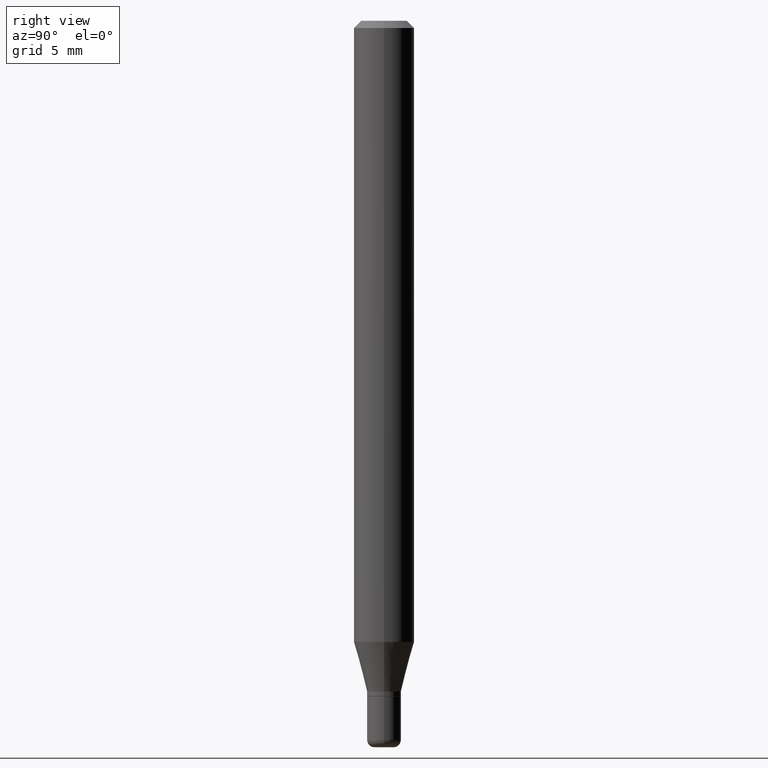
[diagram: clean part render]
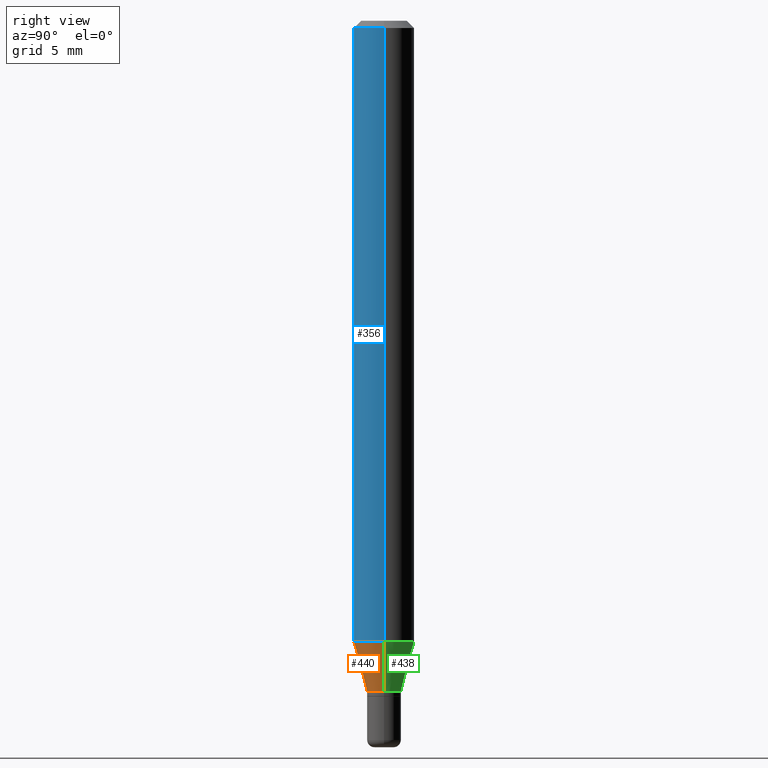
[diagram: same view with three faces highlighted in distinct colors, each labeled with its STEP entity id]
A machine part, right view with three faces highlighted in distinct colors.
Their STEP definitions:

[orange] entity #440 — the highlighted conical surface has half-angle 15 deg.
#15 = EDGE_CURVE ( 'NONE', #511, #121, #208, .T. ) ;
#19 = CARTESIAN_POINT ( 'NONE',  ( 0.06250000000000000000, -4.913801213521515384E-15, -1.282368602791856160 ) ) ;
#29 = CIRCLE ( 'NONE', #385, 0.03500000000000001027 ) ;
#47 = DIRECTION ( 'NONE',  ( 1.000000000000000000, -6.982962677686262766E-15, 0.000000000000000000 ) ) ;
#53 = VERTEX_POINT ( 'NONE', #387 ) ;
#61 = CARTESIAN_POINT ( 'NONE',  ( 3.386974296566414366E-29, -4.835701654297756579E-15, -1.385000000000000009 ) ) ;
#98 = FACE_OUTER_BOUND ( 'NONE', #186, .T. ) ;
#101 = AXIS2_PLACEMENT_3D ( 'NONE', #116, #232, #47 ) ;
#107 = CARTESIAN_POINT ( 'NONE',  ( -0.06250000000000000000, -4.033276836316061099E-15, -1.282368602791856160 ) ) ;
#116 = CARTESIAN_POINT ( 'NONE',  ( 3.135992416158702162E-29, -4.477366046166123715E-15, -1.282368602791856160 ) ) ;
#118 = DIRECTION ( 'NONE',  ( 1.000000000000000000, -6.982962677686275388E-15, 0.000000000000000000 ) ) ;
#121 = VERTEX_POINT ( 'NONE', #107 ) ;
#150 = CARTESIAN_POINT ( 'NONE',  ( 3.386974296566414366E-29, -4.835701654297756579E-15, -1.385000000000000009 ) ) ;
#186 = EDGE_LOOP ( 'NONE', ( #479, #224, #201, #416 ) ) ;
#195 = DIRECTION ( 'NONE',  ( -2.445468806185136597E-29, 3.491481338843145583E-15, 1.000000000000000000 ) ) ;
#198 = EDGE_CURVE ( 'NONE', #53, #352, #407, .T. ) ;
#201 = ORIENTED_EDGE ( 'NONE', *, *, #198, .T. ) ;
#208 = LINE ( 'NONE', #426, #513 ) ;
#224 = ORIENTED_EDGE ( 'NONE', *, *, #308, .T. ) ;
#227 = CARTESIAN_POINT ( 'NONE',  ( 0.03500000000000001027, -5.080105348016776545E-15, -1.385000000000000009 ) ) ;
#232 = DIRECTION ( 'NONE',  ( -2.445468806185136597E-29, 3.491481338843145583E-15, 1.000000000000000000 ) ) ;
#263 = CONICAL_SURFACE ( 'NONE', #452, 0.03500000000000001027, 0.2617993877991498519 ) ;
#288 = DIRECTION ( 'NONE',  ( 1.000000000000000000, -6.982962677686275388E-15, 0.000000000000000000 ) ) ;
#289 = DIRECTION ( 'NONE',  ( -0.2588190451025211281, 5.211531920934547886E-15, 0.9659258262890679791 ) ) ;
#297 = CIRCLE ( 'NONE', #101, 0.06250000000000000000 ) ;
#308 = EDGE_CURVE ( 'NONE', #511, #53, #29, .T. ) ;
#333 = VECTOR ( 'NONE', #463, 39.37007874015748854 ) ;
#352 = VERTEX_POINT ( 'NONE', #19 ) ;
#383 = DIRECTION ( 'NONE',  ( -2.445468806185136597E-29, 3.491481338843145583E-15, 1.000000000000000000 ) ) ;
#385 = AXIS2_PLACEMENT_3D ( 'NONE', #150, #195, #118 ) ;
#387 = CARTESIAN_POINT ( 'NONE',  ( 0.03500000000000001027, -5.080105348016776545E-15, -1.385000000000000009 ) ) ;
#402 = CARTESIAN_POINT ( 'NONE',  ( -0.03500000000000001027, -4.310144266548890801E-15, -1.385000000000000009 ) ) ;
#407 = LINE ( 'NONE', #227, #333 ) ;
#416 = ORIENTED_EDGE ( 'NONE', *, *, #484, .F. ) ;
#426 = CARTESIAN_POINT ( 'NONE',  ( -0.03500000000000001027, -4.587011696781721293E-15, -1.385000000000000009 ) ) ;
#440 = ADVANCED_FACE ( 'NONE', ( #98 ), #263, .T. ) ;
#452 = AXIS2_PLACEMENT_3D ( 'NONE', #61, #383, #288 ) ;
#463 = DIRECTION ( 'NONE',  ( 0.2588190451025211281, 1.565188264969622954E-15, 0.9659258262890679791 ) ) ;
#479 = ORIENTED_EDGE ( 'NONE', *, *, #15, .F. ) ;
#484 = EDGE_CURVE ( 'NONE', #121, #352, #297, .T. ) ;
#511 = VERTEX_POINT ( 'NONE', #402 ) ;
#513 = VECTOR ( 'NONE', #289, 39.37007874015748854 ) ;

[blue] entity #356 — the highlighted cylindrical surface (edge-blend (fillet) strip) has radius 1.5875 mm, axis along (-0, 0, 1).
#6 = CIRCLE ( 'NONE', #363, 0.06250000000000000000 ) ;
#19 = CARTESIAN_POINT ( 'NONE',  ( 0.06250000000000000000, -4.913801213521515384E-15, -1.282368602791856160 ) ) ;
#20 = EDGE_CURVE ( 'NONE', #352, #373, #204, .T. ) ;
#24 = DIRECTION ( 'NONE',  ( -2.445468806185136877E-29, 3.491481338843145188E-15, 1.000000000000000000 ) ) ;
#41 = ORIENTED_EDGE ( 'NONE', *, *, #20, .T. ) ;
#47 = DIRECTION ( 'NONE',  ( 1.000000000000000000, -6.982962677686262766E-15, 0.000000000000000000 ) ) ;
#66 = CARTESIAN_POINT ( 'NONE',  ( 0.06250000000000000000, -4.888073874380378612E-16, -0.01499999999999970281 ) ) ;
#76 = CARTESIAN_POINT ( 'NONE',  ( -0.06250000000000000000, 4.440892098500626162E-16, -3.074334431409316114E-30 ) ) ;
#87 = ORIENTED_EDGE ( 'NONE', *, *, #135, .F. ) ;
#101 = AXIS2_PLACEMENT_3D ( 'NONE', #116, #232, #47 ) ;
#107 = CARTESIAN_POINT ( 'NONE',  ( -0.06250000000000000000, -4.033276836316061099E-15, -1.282368602791856160 ) ) ;
#116 = CARTESIAN_POINT ( 'NONE',  ( 3.135992416158702162E-29, -4.477366046166123715E-15, -1.282368602791856160 ) ) ;
#119 = DIRECTION ( 'NONE',  ( -2.445468806185136597E-29, 3.491481338843145583E-15, 1.000000000000000000 ) ) ;
#121 = VERTEX_POINT ( 'NONE', #107 ) ;
#124 = VECTOR ( 'NONE', #24, 39.37007874015748143 ) ;
#131 = DIRECTION ( 'NONE',  ( 1.000000000000000000, -6.982962677686266711E-15, 0.000000000000000000 ) ) ;
#132 = DIRECTION ( 'NONE',  ( 1.000000000000000000, -6.982962677686266711E-15, 4.876176775795935793E-29 ) ) ;
#135 = EDGE_CURVE ( 'NONE', #121, #177, #437, .T. ) ;
#138 = DIRECTION ( 'NONE',  ( -2.445468806185136597E-29, 3.491481338843145583E-15, 1.000000000000000000 ) ) ;
#156 = CARTESIAN_POINT ( 'NONE',  ( -0.06250000000000000000, -1.820779923274322189E-15, -0.01499999999999970281 ) ) ;
#160 = CARTESIAN_POINT ( 'NONE',  ( 0.000000000000000000, 0.000000000000000000, 0.000000000000000000 ) ) ;
#177 = VERTEX_POINT ( 'NONE', #156 ) ;
#197 = DIRECTION ( 'NONE',  ( -2.445468806185136877E-29, 3.491481338843145188E-15, 1.000000000000000000 ) ) ;
#202 = FACE_OUTER_BOUND ( 'NONE', #517, .T. ) ;
#204 = LINE ( 'NONE', #498, #124 ) ;
#213 = ORIENTED_EDGE ( 'NONE', *, *, #484, .T. ) ;
#230 = EDGE_CURVE ( 'NONE', #177, #373, #6, .T. ) ;
#232 = DIRECTION ( 'NONE',  ( -2.445468806185136597E-29, 3.491481338843145583E-15, 1.000000000000000000 ) ) ;
#235 = CYLINDRICAL_SURFACE ( 'NONE', #445, 0.06250000000000000000 ) ;
#297 = CIRCLE ( 'NONE', #101, 0.06250000000000000000 ) ;
#347 = CARTESIAN_POINT ( 'NONE',  ( 3.668203209277632395E-31, -5.237222008264614861E-17, -0.01499999999999970281 ) ) ;
#352 = VERTEX_POINT ( 'NONE', #19 ) ;
#356 = ADVANCED_FACE ( 'NONE', ( #202 ), #235, .T. ) ;
#363 = AXIS2_PLACEMENT_3D ( 'NONE', #347, #138, #131 ) ;
#373 = VERTEX_POINT ( 'NONE', #66 ) ;
#437 = LINE ( 'NONE', #76, #444 ) ;
#444 = VECTOR ( 'NONE', #197, 39.37007874015748143 ) ;
#445 = AXIS2_PLACEMENT_3D ( 'NONE', #160, #119, #132 ) ;
#447 = ORIENTED_EDGE ( 'NONE', *, *, #230, .F. ) ;
#484 = EDGE_CURVE ( 'NONE', #121, #352, #297, .T. ) ;
#498 = CARTESIAN_POINT ( 'NONE',  ( 0.06250000000000000000, -4.364351673553916694E-16, 3.047610484872459871E-30 ) ) ;
#517 = EDGE_LOOP ( 'NONE', ( #87, #213, #41, #447 ) ) ;

[green] entity #438 — the highlighted conical surface has half-angle 15 deg.
#9 = DIRECTION ( 'NONE',  ( 1.000000000000000000, -6.982962677686275388E-15, 0.000000000000000000 ) ) ;
#15 = EDGE_CURVE ( 'NONE', #511, #121, #208, .T. ) ;
#19 = CARTESIAN_POINT ( 'NONE',  ( 0.06250000000000000000, -4.913801213521515384E-15, -1.282368602791856160 ) ) ;
#26 = FACE_OUTER_BOUND ( 'NONE', #425, .T. ) ;
#45 = EDGE_CURVE ( 'NONE', #352, #121, #236, .T. ) ;
#53 = VERTEX_POINT ( 'NONE', #387 ) ;
#54 = DIRECTION ( 'NONE',  ( -2.445468806185136597E-29, 3.491481338843145583E-15, 1.000000000000000000 ) ) ;
#97 = ORIENTED_EDGE ( 'NONE', *, *, #45, .F. ) ;
#107 = CARTESIAN_POINT ( 'NONE',  ( -0.06250000000000000000, -4.033276836316061099E-15, -1.282368602791856160 ) ) ;
#121 = VERTEX_POINT ( 'NONE', #107 ) ;
#127 = DIRECTION ( 'NONE',  ( -2.445468806185136597E-29, 3.491481338843145583E-15, 1.000000000000000000 ) ) ;
#169 = CARTESIAN_POINT ( 'NONE',  ( 3.386974296566414366E-29, -4.835701654297756579E-15, -1.385000000000000009 ) ) ;
#192 = AXIS2_PLACEMENT_3D ( 'NONE', #403, #194, #9 ) ;
#194 = DIRECTION ( 'NONE',  ( -2.445468806185136597E-29, 3.491481338843145583E-15, 1.000000000000000000 ) ) ;
#198 = EDGE_CURVE ( 'NONE', #53, #352, #407, .T. ) ;
#205 = ORIENTED_EDGE ( 'NONE', *, *, #198, .F. ) ;
#208 = LINE ( 'NONE', #426, #513 ) ;
#227 = CARTESIAN_POINT ( 'NONE',  ( 0.03500000000000001027, -5.080105348016776545E-15, -1.385000000000000009 ) ) ;
#236 = CIRCLE ( 'NONE', #481, 0.06250000000000000000 ) ;
#289 = DIRECTION ( 'NONE',  ( -0.2588190451025211281, 5.211531920934547886E-15, 0.9659258262890679791 ) ) ;
#303 = EDGE_CURVE ( 'NONE', #53, #511, #305, .T. ) ;
#305 = CIRCLE ( 'NONE', #192, 0.03500000000000001027 ) ;
#331 = ORIENTED_EDGE ( 'NONE', *, *, #303, .T. ) ;
#333 = VECTOR ( 'NONE', #463, 39.37007874015748854 ) ;
#352 = VERTEX_POINT ( 'NONE', #19 ) ;
#387 = CARTESIAN_POINT ( 'NONE',  ( 0.03500000000000001027, -5.080105348016776545E-15, -1.385000000000000009 ) ) ;
#402 = CARTESIAN_POINT ( 'NONE',  ( -0.03500000000000001027, -4.310144266548890801E-15, -1.385000000000000009 ) ) ;
#403 = CARTESIAN_POINT ( 'NONE',  ( 3.386974296566414366E-29, -4.835701654297756579E-15, -1.385000000000000009 ) ) ;
#407 = LINE ( 'NONE', #227, #333 ) ;
#414 = ORIENTED_EDGE ( 'NONE', *, *, #15, .T. ) ;
#419 = CARTESIAN_POINT ( 'NONE',  ( 3.135992416158702162E-29, -4.477366046166123715E-15, -1.282368602791856160 ) ) ;
#425 = EDGE_LOOP ( 'NONE', ( #331, #414, #97, #205 ) ) ;
#426 = CARTESIAN_POINT ( 'NONE',  ( -0.03500000000000001027, -4.587011696781721293E-15, -1.385000000000000009 ) ) ;
#436 = AXIS2_PLACEMENT_3D ( 'NONE', #169, #127, #466 ) ;
#438 = ADVANCED_FACE ( 'NONE', ( #26 ), #507, .T. ) ;
#463 = DIRECTION ( 'NONE',  ( 0.2588190451025211281, 1.565188264969622954E-15, 0.9659258262890679791 ) ) ;
#466 = DIRECTION ( 'NONE',  ( 1.000000000000000000, -6.982962677686275388E-15, 0.000000000000000000 ) ) ;
#481 = AXIS2_PLACEMENT_3D ( 'NONE', #419, #54, #503 ) ;
#503 = DIRECTION ( 'NONE',  ( 1.000000000000000000, -6.982962677686262766E-15, 0.000000000000000000 ) ) ;
#507 = CONICAL_SURFACE ( 'NONE', #436, 0.03500000000000001027, 0.2617993877991498519 ) ;
#511 = VERTEX_POINT ( 'NONE', #402 ) ;
#513 = VECTOR ( 'NONE', #289, 39.37007874015748854 ) ;